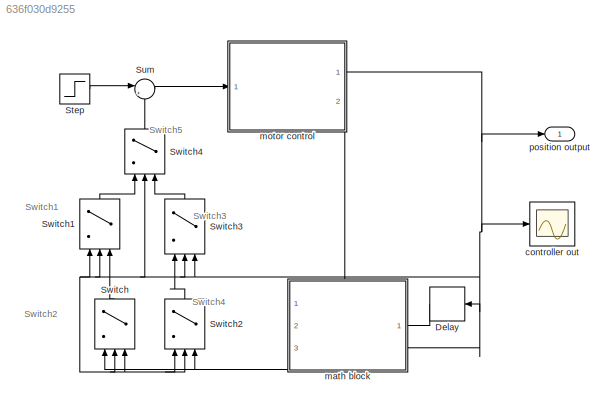
MODEL slx_636f030d9255
KIND model
CONFIG AbsTol = auto
CONFIG EnableMultiTasking = off
CONFIG FixedStep = auto
CONFIG MaxStep = auto
CONFIG MinStep = auto
CONFIG RelTol = 1e-3
CONFIG SampleTimeConstraint = Unconstrained
CONFIG SolverName = VariableStepAuto
CONFIG StartTime = 0.0
CONFIG StopTime = 10
BLOCK [Delay] Delay
  DelayLength = 1
  InitialCondition = 0
  InputPortMap = u0
  Ports = [1, 1]
BLOCK [Step] Step
  After = theta
  SampleTime = 0
BLOCK [Sum] Sum
  Inputs = |+-
  Ports = [2, 1]
BLOCK [Switch] Switch
  Criteria = u2 > Threshold
  InputSameDT = off
  NameLocation = right
  SaturateOnIntegerOverflow = off
  Threshold = 1
BLOCK [Switch] Switch1
  Criteria = u2 > Threshold
  InputSameDT = off
  NameLocation = right
  SaturateOnIntegerOverflow = off
  Threshold = theta - A
  ZeroCross = off
BLOCK [Switch] Switch2
  Criteria = u2 > Threshold
  InputSameDT = off
  NameLocation = right
  SaturateOnIntegerOverflow = off
  Threshold = -1
BLOCK [Switch] Switch3
  Criteria = u2 > Threshold
  InputSameDT = off
  NameLocation = right
  SaturateOnIntegerOverflow = off
  Threshold = theta - A
  ZeroCross = off
BLOCK [Switch] Switch4
  Criteria = u2 > Threshold
  InputSameDT = off
  NameLocation = right
  SaturateOnIntegerOverflow = off
  ZeroCross = off
BLOCK [Scope] controller out
  Floating = off
  NumInputPorts = 1
  Ports = [1]
  ScopeSpecificationString = Simulink.scopes.TimeScopeBlockCfg('CurrentConfiguration', extmgr.ConfigurationSet(extmgr.Configuration('Core','General UI',true),extmgr.Configuration('Core','Source UI',true),extmgr.Configuration('Sources','WiredSimulink',true,'DataLoggingSaveFormat','StructureWithTime','DataLoggingMaxPoints','500000','DataLoggingDecimation','1','DataLoggingDecimateData',true),extmgr.Configuration('Visuals','Time ...<+2053ch>
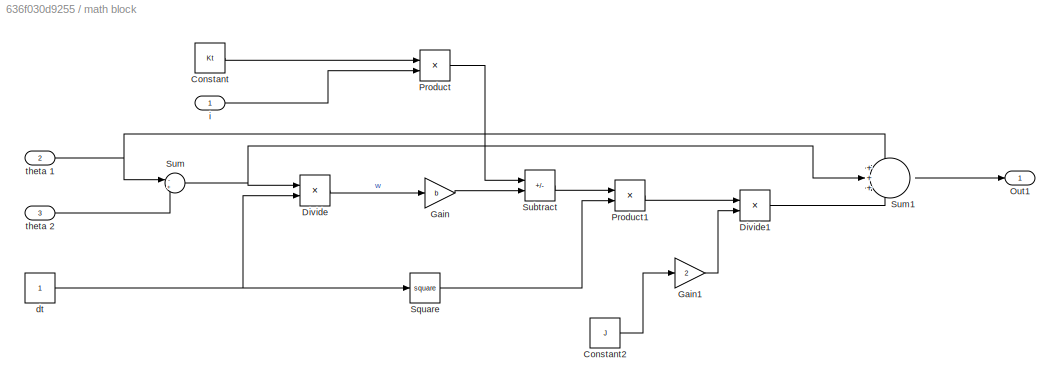
BLOCK [SubSystem] math block
  PortSchema = {"entries":[{"content":{"sides":[{"content":{"connectorIds":["Out1"]},"type":"ConnectorPlacement.EquallySpacedRectSide","uuid":"7b2525ee-f4b3-4012-96d8-73c23f64b492"},{"content":{"connectorIds":["In2","In3"],"side":"RIGHT"},"type":"ConnectorPlacement.EquallySpacedRectSide","uuid":"d5f03473-39b5-4853-a461-ee9452a01372"},{"content":{"connectorIds":["In1"],"side":"TOP"},"type":"ConnectorPlacement.Equ...<+395ch>
  Ports = [3, 1]
  RequestExecContextInheritance = off
BLOCK [Constant] math block/Constant
  Value = Kt
BLOCK [Constant] math block/Constant2
  Value = J
BLOCK [Product] math block/Divide
  Inputs = */
  Ports = [2, 1]
BLOCK [Product] math block/Divide1
  Inputs = */
  Ports = [2, 1]
BLOCK [Gain] math block/Gain
  Gain = b
BLOCK [Gain] math block/Gain1
  Gain = 2
BLOCK [Outport] math block/Out1
BLOCK [Product] math block/Product
  Ports = [2, 1]
BLOCK [Product] math block/Product1
  Ports = [2, 1]
BLOCK [Math] math block/Square
  Operator = square
  Ports = [1, 1]
BLOCK [Sum] math block/Subtract
  IconShape = rectangular
  Inputs = +-
  Ports = [2, 1]
BLOCK [Sum] math block/Sum
  Inputs = -+
  Ports = [2, 1]
BLOCK [Sum] math block/Sum1
  Inputs = +++
  Ports = [3, 1]
BLOCK [Constant] math block/dt
BLOCK [Inport] math block/i
BLOCK [Inport] math block/theta 1
  Port = 2
BLOCK [Inport] math block/theta 2
  Port = 3
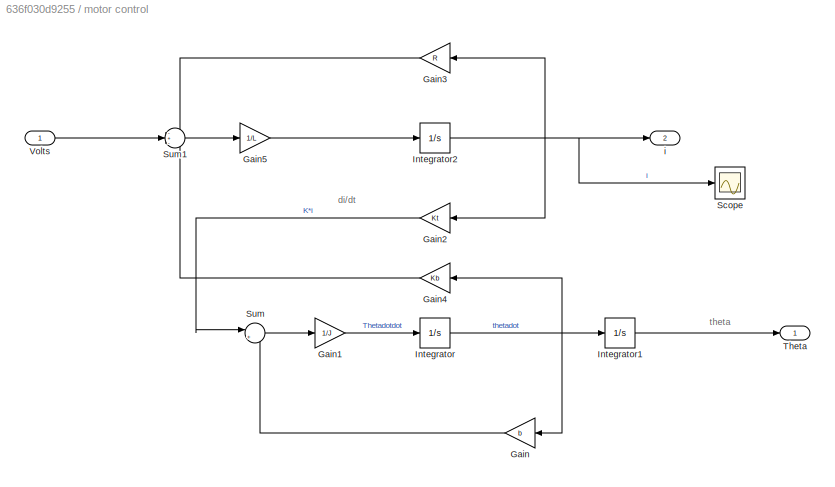
BLOCK [SubSystem] motor control
  Ports = [1, 2]
  RequestExecContextInheritance = off
BLOCK [Gain] motor control/Gain
  Gain = b
BLOCK [Gain] motor control/Gain1
  Gain = 1/J
BLOCK [Gain] motor control/Gain2
  Gain = Kt
BLOCK [Gain] motor control/Gain3
  Gain = R
BLOCK [Gain] motor control/Gain4
  Gain = Kb
BLOCK [Gain] motor control/Gain5
  Gain = 1/L
BLOCK [Integrator] motor control/Integrator
  Ports = [1, 1]
BLOCK [Integrator] motor control/Integrator1
  Ports = [1, 1]
BLOCK [Integrator] motor control/Integrator2
  Ports = [1, 1]
BLOCK [Scope] motor control/Scope
  Floating = off
  NumInputPorts = 1
  Ports = [1]
  ScopeSpecificationString = Simulink.scopes.TimeScopeBlockCfg('CurrentConfiguration', extmgr.ConfigurationSet(extmgr.Configuration('Core','General UI',true),extmgr.Configuration('Core','Source UI',true),extmgr.Configuration('Sources','WiredSimulink',true,'DataLoggingVariableName','ScopeData5'),extmgr.Configuration('Visuals','Time Domain',true,'SerializedDisplays',{struct('MinYLimReal','-5.66645','MaxYLimReal','17.28984','YLa...<+1397ch>
BLOCK [Sum] motor control/Sum
  Inputs = |+-
  Ports = [2, 1]
BLOCK [Sum] motor control/Sum1
  Inputs = -+-
  Ports = [3, 1]
BLOCK [Outport] motor control/Theta
BLOCK [Inport] motor control/Volts
BLOCK [Outport] motor control/i
  Port = 2
BLOCK [Outport] position output
ANNOTATION (root): Switch2
ANNOTATION (root): Switch4
ANNOTATION (root): Switch5
ANNOTATION (root): Switch1
ANNOTATION (root): Switch3
ANNOTATION motor control: di/dt
ANNOTATION motor control: theta
LINE Delay:1 -> math block:2
LINE Step:1 -> Sum:1
LINE Sum:1 -> motor control:1
LINE Switch1:1 -> Switch4:1
LINE Switch2:1 -> Switch3:1
LINE Switch3:1 -> Switch4:3
LINE Switch4:1 -> Sum:2
LINE Switch:1 -> Switch1:3
LINE math block/Constant2:1 -> math block/Gain1:1
LINE math block/Constant:1 -> math block/Product:1
LINE math block/Divide1:1 -> math block/Sum1:3
LINE math block/Divide:1 -> math block/Gain:1
LINE math block/Gain1:1 -> math block/Divide1:2
LINE math block/Gain:1 -> math block/Subtract:2
LINE math block/Product1:1 -> math block/Divide1:1
LINE math block/Product:1 -> math block/Subtract:1
LINE math block/Square:1 -> math block/Product1:2
LINE math block/Subtract:1 -> math block/Product1:1
LINE math block/Sum1:1 -> math block/Out1:1
NET math block/Sum:1 -> math block/Divide:1, math block/Sum1:2
NET math block/dt:1 -> math block/Divide:2, math block/Square:1
LINE math block/i:1 -> math block/Product:2
NET math block/theta 1:1 -> math block/Sum1:1, math block/Sum:1
LINE math block/theta 2:1 -> math block/Sum:2
NET math block:1 -> Switch2:3, Switch:1
LINE motor control/Gain1:1 -> motor control/Integrator:1
LINE motor control/Gain2:1 -> motor control/Sum:1
LINE motor control/Gain3:1 -> motor control/Sum1:1
LINE motor control/Gain4:1 -> motor control/Sum1:3
LINE motor control/Gain5:1 -> motor control/Integrator2:1
LINE motor control/Gain:1 -> motor control/Sum:2
LINE motor control/Integrator1:1 -> motor control/Theta:1
NET motor control/Integrator2:1 -> motor control/Gain2:1, motor control/Gain3:1, motor control/Scope:1, motor control/i:1
NET motor control/Integrator:1 -> motor control/Gain4:1, motor control/Gain:1, motor control/Integrator1:1
LINE motor control/Sum1:1 -> motor control/Gain5:1
LINE motor control/Sum:1 -> motor control/Gain1:1
LINE motor control/Volts:1 -> motor control/Sum1:2
NET motor control:1 -> Delay:1, Switch1:1, Switch1:2, Switch2:1, Switch2:2, Switch3:2, Switch3:3, Switch4:2, Switch:2, Switch:3, controller out:1, math block:3, position output:1
LINE motor control:2 -> math block:1
note: NET lines group one-source signal fan-out (src -> all destinations, sorted); 1:1 wires keep LINE
